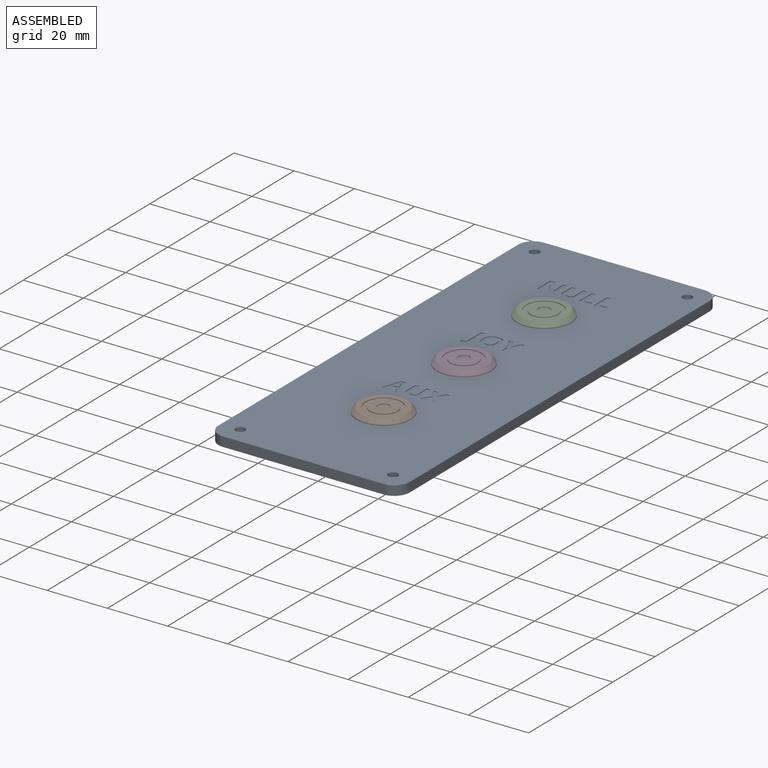
[diagram: assembled view]
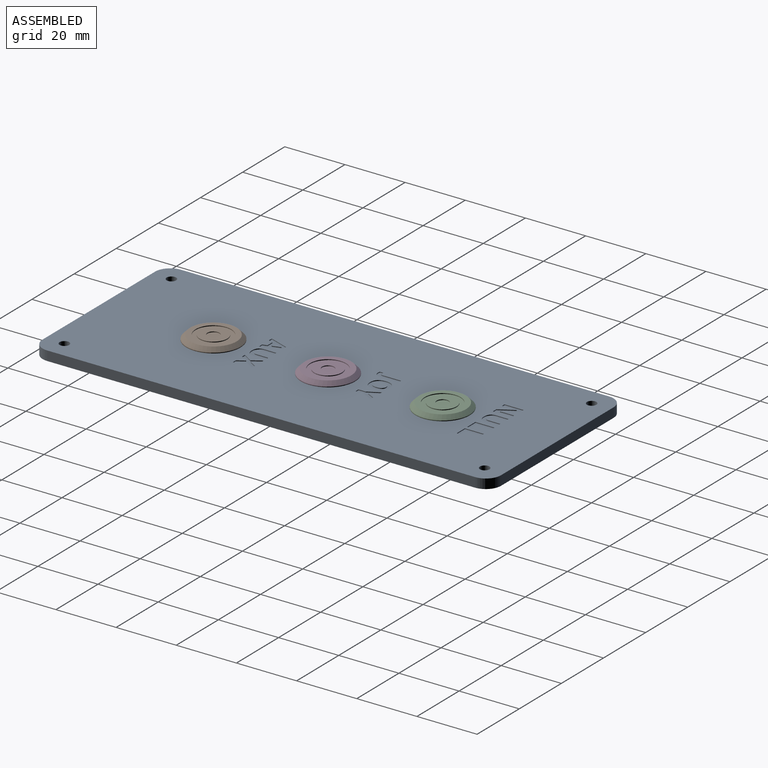
[diagram: assembled view, second angle]
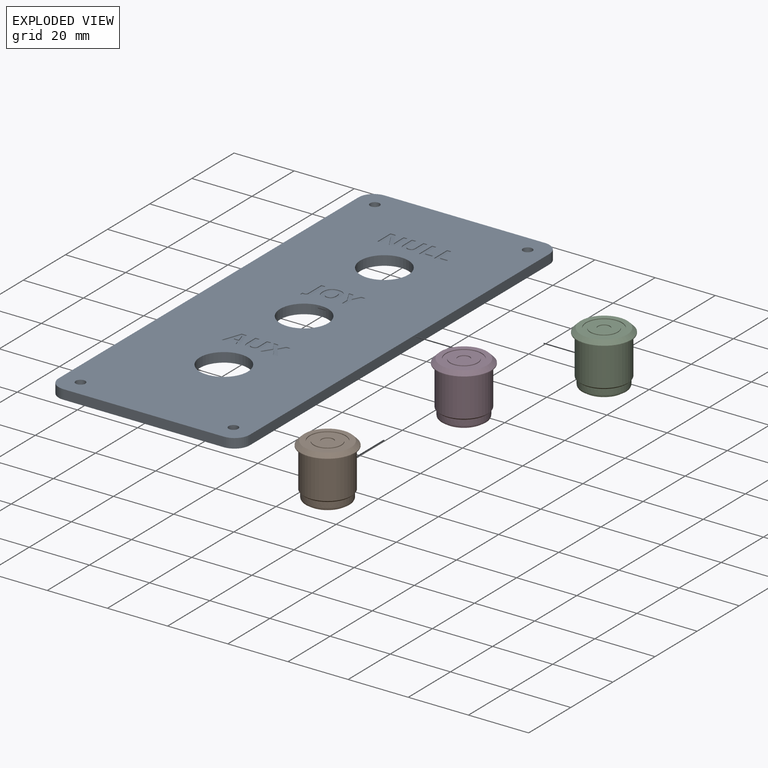
[diagram: exploded view]
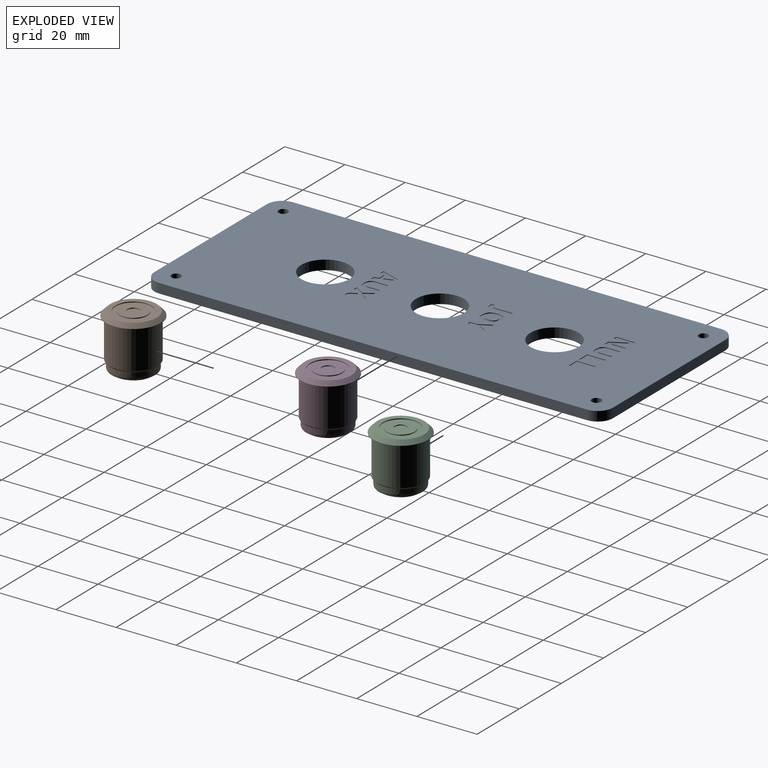
[diagram: exploded view, second angle]
ASSEMBLY  parts=4 mates=3
PART A: 142 faces, bbox 63.5x152.4x3.2 mm
  f0: plane 152.4x63.5mm, normal (0,0,1), area 8845mm2, adj f2,f3,f4,f5,f6,f7,f8,f9
  f1: plane 152.4x63.5mm, normal (0,0,-1), area 9020.2mm2, adj f2,f3,f4,f5,f6,f7,f8,f9
  f2: plane 142.24x3.18mm, normal (-1,0,0), area 451.6mm2, adj f0,f1,f10,f13
  f3: plane 53.34x3.18mm, normal (0,-1,0), area 169.4mm2, adj f0,f1,f10,f11
  f4: plane 142.24x3.18mm, normal (1,0,0), area 451.6mm2, adj f0,f1,f11,f12
  f5: cylinder r=1.59mm len=3.18mm, axis (0,0,-1), area 31.7mm2, adj f0,f1
  f6: cylinder r=1.59mm len=3.18mm, axis (0,0,-1), area 31.7mm2, adj f0,f1
  f7: cylinder r=1.59mm len=3.18mm, axis (0,0,-1), area 31.7mm2, adj f0,f1
  f8: plane 53.34x3.18mm, normal (0,1,0), area 169.4mm2, adj f0,f1,f12,f13
  f9: cylinder r=1.59mm len=3.18mm, axis (0,0,-1), area 31.7mm2, adj f0,f1
  f10: cylinder r=5.08mm len=5.08mm, axis (0,0,1), area 25.3mm2, adj f0,f1,f2,f3
  f11: cylinder r=5.08mm len=5.08mm, axis (0,0,-1), area 25.3mm2, adj f0,f1,f3,f4
  f12: cylinder r=5.08mm len=5.08mm, axis (0,0,1), area 25.3mm2, adj f0,f1,f4,f8
  f13: cylinder r=5.08mm len=5.08mm, axis (0,0,-1), area 25.3mm2, adj f0,f1,f2,f8
  f14: cylinder r=8mm len=16mm, axis (0,0,1), area 159.6mm2, adj f0,f1
  f15: cylinder r=8mm len=16mm, axis (0,0,1), area 159.6mm2, adj f0,f1
  f16: cylinder r=8mm len=16mm, axis (0,0,1), area 159.6mm2, adj f0,f1
  f17: plane 1.7x0.25mm, normal (0,1,0), area 0.4mm2, adj f0,f18,f30,f31
  f18: plane 6.3x0.25mm, normal (-1,0,0), area 1.6mm2, adj f0,f17,f19,f31
  f19: plane 1.2x0.25mm, normal (0,-1,0), area 0.3mm2, adj f0,f18,f20,f31
  f20: plane 2.98x0.25mm, normal (1,0,0), area 0.8mm2, adj f0,f19,f21,f31
  f21: extruded ~1.74x0.25mm, area 0.4mm2, adj f0,f20,f22,f31
  f22: plane 0.25x0.03mm, normal (0,-1,0), area 0mm2, adj f0,f21,f23,f31
  f23: plane 4.72x2.73mm, normal (-0.87,-0.5,0), area 1.4mm2, adj f0,f22,f24,f31
  f24: plane 1.68x0.25mm, normal (0,-1,0), area 0.4mm2, adj f0,f23,f25,f31
  f25: plane 6.3x0.25mm, normal (1,0,0), area 1.6mm2, adj f0,f24,f26,f31
  f26: plane 1.19x0.25mm, normal (0,1,0), area 0.3mm2, adj f0,f25,f27,f31
  f27: plane 2.96x0.25mm, normal (-1,0,0), area 0.8mm2, adj f0,f26,f28,f31
  f28: extruded ~1.8x0.25mm, area 0.5mm2, adj f0,f27,f29,f31
  f29: plane 0.25x0.04mm, normal (0,1,0), area 0mm2, adj f0,f28,f30,f31
  f30: plane 4.76x2.74mm, normal (0.87,0.5,0), area 1.4mm2, adj f0,f17,f29,f31
  f31: plane 6.3x5.59mm, normal (0,0,1), area 22.5mm2, adj f17,f18,f19,f20,f21,f22,f23,f24
  f32: extruded ~2.3x0.71mm, area 0.6mm2, adj f33,f43,f44,f140
  f33: plane 1.64x0.25mm, normal (0,-1,0), area 0.4mm2, adj f32,f34,f44,f140
  f34: extruded ~2.73x0.81mm, area 0.7mm2, adj f33,f43,f44,f140
  f35: plane 1.5x0.46mm, normal (0.96,0.29,0), area 0.4mm2, adj f0,f36,f42,f44
  f36: plane 1.44x0.25mm, normal (0,1,0), area 0.4mm2, adj f0,f35,f37,f44
  f37: plane 6.32x2.23mm, normal (-0.94,-0.33,0), area 1.7mm2, adj f0,f36,f38,f44
  f38: plane 1.63x0.25mm, normal (0,-1,0), area 0.4mm2, adj f0,f37,f39,f44
  f39: plane 6.32x2.22mm, normal (0.94,-0.33,0), area 1.7mm2, adj f0,f38,f40,f44
  f40: plane 1.44x0.25mm, normal (0,1,0), area 0.4mm2, adj f0,f39,f41,f44
  f41: plane 1.5x0.46mm, normal (-0.96,0.29,0), area 0.4mm2, adj f0,f40,f42,f44
  f42: plane 2.3x0.25mm, normal (0,1,0), area 0.6mm2, adj f0,f35,f41,f44
  f43: extruded ~0.42x0.25mm, area 0.1mm2, adj f32,f34,f44,f140
  f44: plane 6.32x6.09mm, normal (0,0,1), area 18.1mm2, adj f32,f33,f34,f35,f36,f37,f38,f39
  f45: extruded ~0.79x0.25mm, area 0.2mm2, adj f0,f46,f54,f55
  f46: extruded ~1.49x0.58mm, area 0.4mm2, adj f0,f45,f47,f55
  f47: extruded ~1.68x0.5mm, area 0.5mm2, adj f0,f46,f48,f55
  f48: plane 5.89x0.25mm, normal (-1,0,0), area 1.5mm2, adj f0,f47,f49,f55
  f49: plane 1.34x0.25mm, normal (0,-1,0), area 0.3mm2, adj f0,f48,f50,f55
  f50: plane 5.9x0.25mm, normal (1,0,0), area 1.5mm2, adj f0,f49,f51,f55
  f51: extruded ~0.86x0.25mm, area 0.2mm2, adj f0,f50,f52,f55
  f52: extruded ~0.63x0.27mm, area 0.2mm2, adj f0,f51,f53,f55
  f53: extruded ~0.63x0.25mm, area 0.2mm2, adj f0,f52,f54,f55
  f54: plane 1.11x0.25mm, normal (1,0,0), area 0.3mm2, adj f0,f45,f53,f55
  f55: plane 8.15x2.78mm, normal (0,0,1), area 11.9mm2, adj f45,f46,f47,f48,f49,f50,f51,f52
  f56: plane 6.3x0.25mm, normal (1,0,0), area 1.6mm2, adj f0,f57,f61,f62
  f57: plane 3.89x0.25mm, normal (0,1,0), area 1mm2, adj f0,f56,f58,f62
  f58: plane 1.1x0.25mm, normal (-1,0,0), area 0.3mm2, adj f0,f57,f59,f62
  f59: plane 2.55x0.25mm, normal (0,-1,0), area 0.6mm2, adj f0,f58,f60,f62
  f60: plane 5.19x0.25mm, normal (-1,0,0), area 1.3mm2, adj f0,f59,f61,f62
  f61: plane 1.34x0.25mm, normal (0,-1,0), area 0.3mm2, adj f0,f56,f60,f62
  f62: plane 6.3x3.89mm, normal (0,0,1), area 11.2mm2, adj f56,f57,f58,f59,f60,f61
  f63: plane 6.3x0.25mm, normal (1,0,0), area 1.6mm2, adj f0,f64,f68,f69
  f64: plane 3.89x0.25mm, normal (0,1,0), area 1mm2, adj f0,f63,f65,f69
  f65: plane 1.1x0.25mm, normal (-1,0,0), area 0.3mm2, adj f0,f64,f66,f69
  f66: plane 2.55x0.25mm, normal (0,-1,0), area 0.6mm2, adj f0,f65,f67,f69
  f67: plane 5.19x0.25mm, normal (-1,0,0), area 1.3mm2, adj f0,f66,f68,f69
  f68: plane 1.34x0.25mm, normal (0,-1,0), area 0.3mm2, adj f0,f63,f67,f69
  f69: plane 6.3x3.89mm, normal (0,0,1), area 11.2mm2, adj f63,f64,f65,f66,f67,f68
  f70: plane 4.07x0.25mm, normal (-1,0,0), area 1mm2, adj f0,f71,f84,f85
  f71: plane 1.33x0.25mm, normal (0,-1,0), area 0.3mm2, adj f0,f70,f72,f85
  f72: plane 3.85x0.25mm, normal (1,0,0), area 1mm2, adj f0,f71,f73,f85
  f73: extruded ~1.07x0.3mm, area 0.3mm2, adj f0,f72,f74,f85
  f74: extruded ~0.95x0.34mm, area 0.3mm2, adj f0,f73,f75,f85
  f75: extruded ~0.97x0.34mm, area 0.3mm2, adj f0,f74,f76,f85
  f76: extruded ~1.07x0.29mm, area 0.3mm2, adj f0,f75,f77,f85
  f77: plane 3.85x0.25mm, normal (-1,0,0), area 1mm2, adj f0,f76,f78,f85
  f78: plane 1.33x0.25mm, normal (0,-1,0), area 0.3mm2, adj f0,f77,f79,f85
  f79: plane 4.06x0.25mm, normal (1,0,0), area 1mm2, adj f0,f78,f80,f85
  f80: extruded ~1.7x0.67mm, area 0.5mm2, adj f0,f79,f81,f85
  f81: extruded ~1.89x0.62mm, area 0.5mm2, adj f0,f80,f82,f85
  f82: extruded ~1.4x0.28mm, area 0.4mm2, adj f0,f81,f83,f85
  f83: extruded ~0.9x0.81mm, area 0.3mm2, adj f0,f82,f84,f85
  f84: extruded ~1.22x0.31mm, area 0.3mm2, adj f0,f70,f83,f85
  f85: plane 6.38x5.17mm, normal (0,0,1), area 18.1mm2, adj f70,f71,f72,f73,f74,f75,f76,f77
  f86: extruded ~1.59x0.4mm, area 0.4mm2, adj f87,f99,f100,f141
  f87: extruded ~1.59x0.4mm, area 0.4mm2, adj f86,f88,f100,f141
  f88: extruded ~1.2x0.54mm, area 0.3mm2, adj f87,f89,f100,f141
  f89: extruded ~2.13x1.59mm, area 0.8mm2, adj f88,f90,f100,f141
  f90: extruded ~2.12x1.6mm, area 0.8mm2, adj f89,f99,f100,f141
  f91: extruded ~2.4x0.78mm, area 0.7mm2, adj f0,f92,f98,f100
  f92: extruded ~2.4x0.77mm, area 0.7mm2, adj f0,f91,f93,f100
  f93: extruded ~2.22x0.84mm, area 0.6mm2, adj f0,f92,f94,f100
  f94: extruded ~2.23x0.83mm, area 0.6mm2, adj f0,f93,f95,f100
  f95: extruded ~2.4x0.78mm, area 0.7mm2, adj f0,f94,f96,f100
  f96: extruded ~2.41x0.78mm, area 0.7mm2, adj f0,f95,f97,f100
  f97: extruded ~2.22x0.84mm, area 0.6mm2, adj f0,f96,f98,f100
  f98: extruded ~2.22x0.84mm, area 0.6mm2, adj f0,f91,f97,f100
  f99: extruded ~1.2x0.53mm, area 0.3mm2, adj f86,f90,f100,f141
  f100: plane 6.48x5.99mm, normal (0,0,1), area 20.8mm2, adj f86,f87,f88,f89,f90,f91,f92,f93
  f101: plane 1.52x0.25mm, normal (0,1,0), area 0.4mm2, adj f0,f102,f112,f113
  f102: plane 3.17x2.13mm, normal (-0.83,-0.56,0), area 1mm2, adj f0,f101,f103,f113
  f103: plane 3.12x1.98mm, normal (-0.85,0.53,0), area 0.9mm2, adj f0,f102,f104,f113
  f104: plane 1.44x0.25mm, normal (0,-1,0), area 0.4mm2, adj f0,f103,f105,f113
  f105: plane 2.27x1.33mm, normal (0.86,-0.51,0), area 0.7mm2, adj f0,f104,f106,f113
  f106: plane 2.27x1.36mm, normal (-0.86,-0.51,0), area 0.7mm2, adj f0,f105,f107,f113
  f107: plane 1.47x0.25mm, normal (0,-1,0), area 0.4mm2, adj f0,f106,f108,f113
  f108: plane 3.05x1.96mm, normal (0.84,0.54,0), area 0.9mm2, adj f0,f107,f109,f113
  f109: plane 3.25x2.09mm, normal (0.84,-0.54,0), area 1mm2, adj f0,f108,f110,f113
  f110: plane 1.43x0.25mm, normal (0,1,0), area 0.4mm2, adj f0,f109,f111,f113
  f111: plane 2.38x1.46mm, normal (-0.85,0.52,0), area 0.7mm2, adj f0,f110,f112,f113
  f112: plane 2.38x1.47mm, normal (0.85,0.52,0), area 0.7mm2, adj f0,f101,f111,f113
  f113: plane 6.3x5.88mm, normal (0,0,1), area 16.8mm2, adj f101,f102,f103,f104,f105,f106,f107,f108
  f114: plane 4.07x0.25mm, normal (-1,0,0), area 1mm2, adj f0,f115,f128,f129
  f115: plane 1.33x0.25mm, normal (0,-1,0), area 0.3mm2, adj f0,f114,f116,f129
  f116: plane 3.85x0.25mm, normal (1,0,0), area 1mm2, adj f0,f115,f117,f129
  f117: extruded ~1.07x0.3mm, area 0.3mm2, adj f0,f116,f118,f129
  f118: extruded ~0.95x0.34mm, area 0.3mm2, adj f0,f117,f119,f129
  f119: extruded ~0.97x0.34mm, area 0.3mm2, adj f0,f118,f120,f129
  f120: extruded ~1.07x0.29mm, area 0.3mm2, adj f0,f119,f121,f129
  f121: plane 3.85x0.25mm, normal (-1,0,0), area 1mm2, adj f0,f120,f122,f129
  f122: plane 1.33x0.25mm, normal (0,-1,0), area 0.3mm2, adj f0,f121,f123,f129
  f123: plane 4.06x0.25mm, normal (1,0,0), area 1mm2, adj f0,f122,f124,f129
  f124: extruded ~1.7x0.67mm, area 0.5mm2, adj f0,f123,f125,f129
  f125: extruded ~1.89x0.62mm, area 0.5mm2, adj f0,f124,f126,f129
  f126: extruded ~1.4x0.28mm, area 0.4mm2, adj f0,f125,f127,f129
  f127: extruded ~0.9x0.81mm, area 0.3mm2, adj f0,f126,f128,f129
  f128: extruded ~1.22x0.31mm, area 0.3mm2, adj f0,f114,f127,f129
  f129: plane 6.38x5.17mm, normal (0,0,1), area 18.1mm2, adj f114,f115,f116,f117,f118,f119,f120,f121
  f130: plane 2.59x1.31mm, normal (0.89,-0.45,0), area 0.7mm2, adj f0,f131,f138,f139
  f131: plane 2.59x1.31mm, normal (-0.89,-0.45,0), area 0.7mm2, adj f0,f130,f132,f139
  f132: plane 1.45x0.25mm, normal (0,-1,0), area 0.4mm2, adj f0,f131,f133,f139
  f133: plane 3.89x2.09mm, normal (0.88,0.47,0), area 1.1mm2, adj f0,f132,f134,f139
  f134: plane 2.41x0.25mm, normal (1,0,0), area 0.6mm2, adj f0,f133,f135,f139
  f135: plane 1.33x0.25mm, normal (0,1,0), area 0.3mm2, adj f0,f134,f136,f139
  f136: plane 2.45x0.25mm, normal (-1,0,0), area 0.6mm2, adj f0,f135,f137,f139
  f137: plane 3.85x2.09mm, normal (-0.88,0.48,0), area 1.1mm2, adj f0,f136,f138,f139
  f138: plane 1.44x0.25mm, normal (0,-1,0), area 0.4mm2, adj f0,f130,f137,f139
  f139: plane 6.3x5.5mm, normal (0,0,1), area 13mm2, adj f130,f131,f132,f133,f134,f135,f136,f137
  f140: plane 2.73x1.64mm, normal (0,0,1), area 2.2mm2, adj f32,f33,f34,f43
  f141: plane 4.25x3.19mm, normal (0,0,1), area 11.3mm2, adj f86,f87,f88,f89,f90,f99
PART B: 16 faces, bbox 18x18x18 mm
  f0: cylinder r=9mm len=18.01mm, axis (0,0,-1), area 12.9mm2, adj f2,f3
  f1: plane 15.47x15.47mm, normal (0,0,1), area 76.5mm2, adj f3,f5
  f2: plane 18.01x18.01mm, normal (0,0,-1), area 53.7mm2, adj f0,f10
  f3: cone r=7.73mm half-angle=45deg, axis (0,0,-1), area 94.4mm2, adj f0,f1
  f4: cylinder r=4.6mm len=9.2mm, axis (0,0,1), area 7.3mm2, adj f6,f7
  f5: cylinder r=5.96mm len=11.91mm, axis (0,0,1), area 9.5mm2, adj f1,f6
  f6: plane 11.91x11.91mm, normal (0,0,1), area 45.1mm2, adj f4,f5
  f7: plane 9.2x9.2mm, normal (0,0,1), area 53.9mm2, adj f4,f8
  f8: cylinder r=1.99mm len=3.99mm, axis (0,0,1), area 3.2mm2, adj f7,f9
  f9: plane 3.99x3.99mm, normal (0,0,1), area 12.5mm2, adj f8
  f10: cylinder r=8mm len=16mm, axis (0,0,1), area 651.1mm2, adj f2,f11
  f11: cone r=7.49mm half-angle=45deg, axis (0,0,1), area 35mm2, adj f10,f12
  f12: cylinder r=7.49mm len=14.98mm, axis (0,0,1), area 59.8mm2, adj f11,f13
  f13: bspline ~14.98x14.97mm, area 100mm2, adj f12,f14
  f14: extruded ~12.44x12.44mm, area 19.9mm2, adj f13,f15
  f15: plane 12.45x12.45mm, normal (0,0,-1), area 121.7mm2, adj f14
PART C: same geometry as B
PART D: same geometry as B
PLACE A rot(axis=(0,0,1),0deg) t=(-5.08,-5.08,-1.59)mm
PLACE B rot(axis=(0,0,-1),149deg) t=(26.67,33.02,1.59)mm
PLACE C t=(26.67,109.22,1.59)mm
PLACE D t=(26.67,71.12,1.59)mm
MATE cylindrical A.f14 <-> D.f10  axis (0,0,1) through (26.67,71.12,0)mm
MATE cylindrical A.f16 <-> B.f10  axis (0,0,1) through (26.67,33.02,1.59)mm
MATE cylindrical A.f15 <-> C.f10  axis (0,0,1) through (26.67,109.22,1.59)mm
